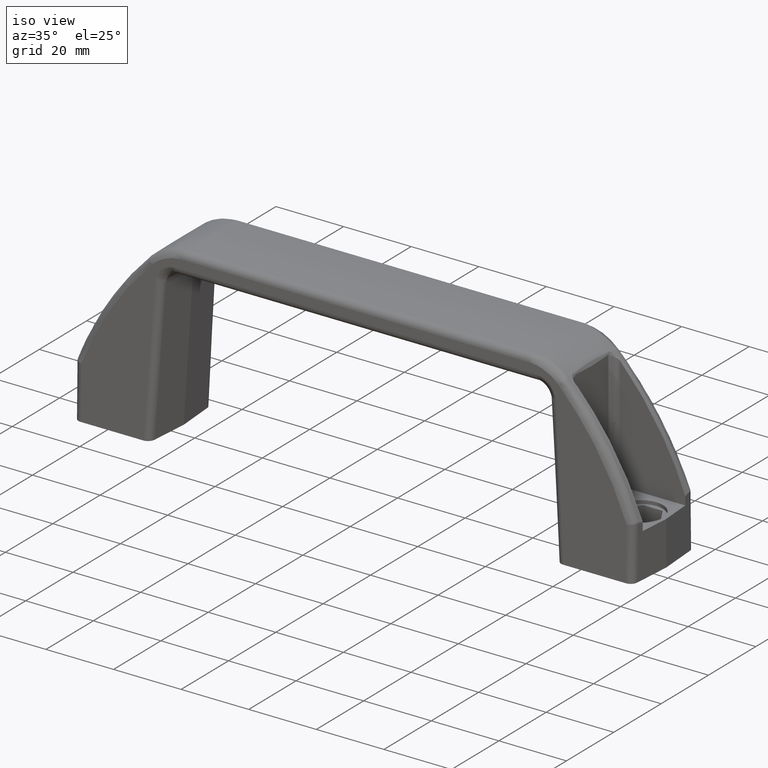
[diagram: clean part render]
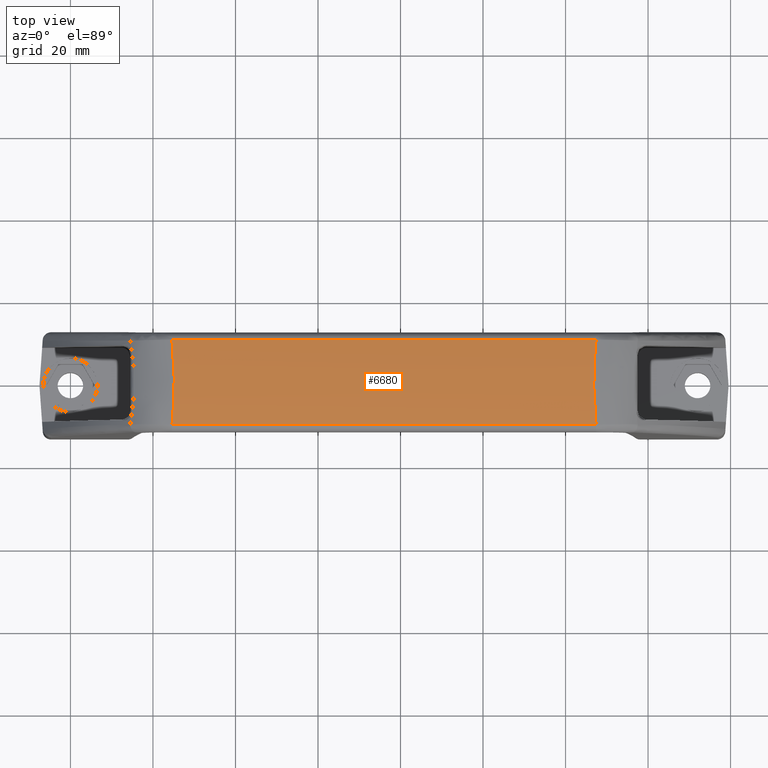
[diagram: tour spotlight — one face highlighted and labeled with its STEP entity id]
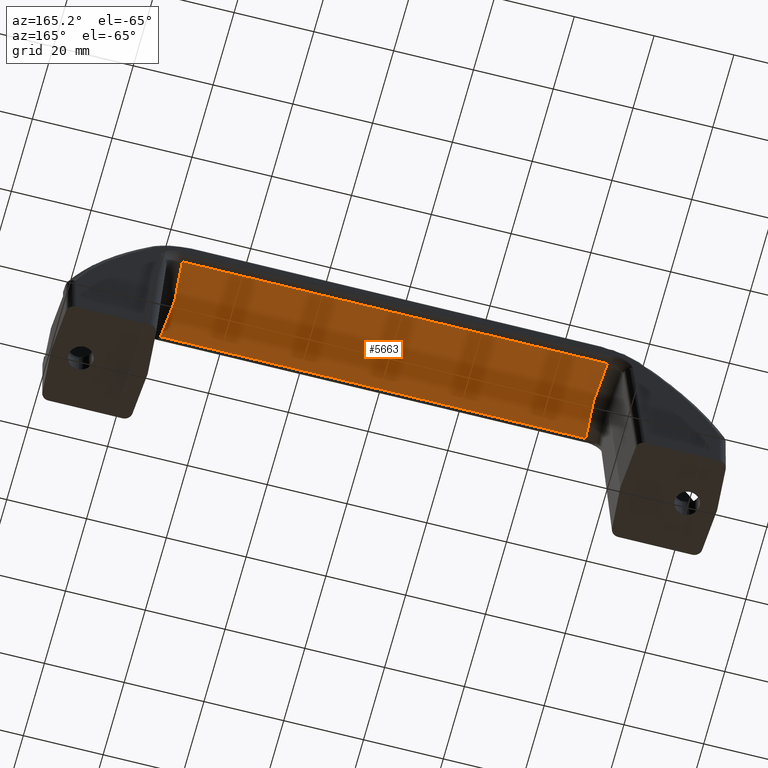
[diagram: tour spotlight — one face highlighted and labeled with its STEP entity id]
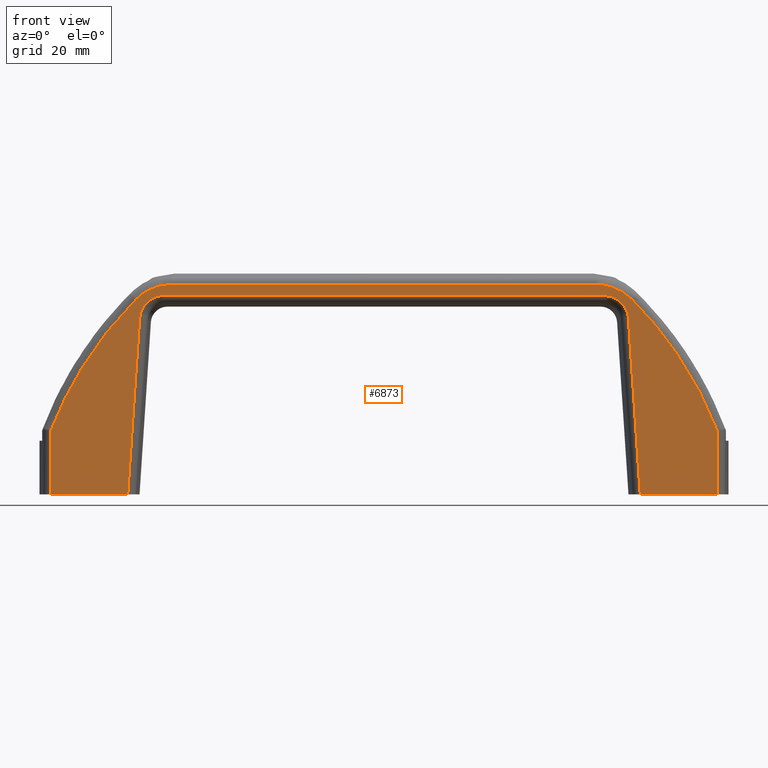
[diagram: tour spotlight — one face highlighted and labeled with its STEP entity id]
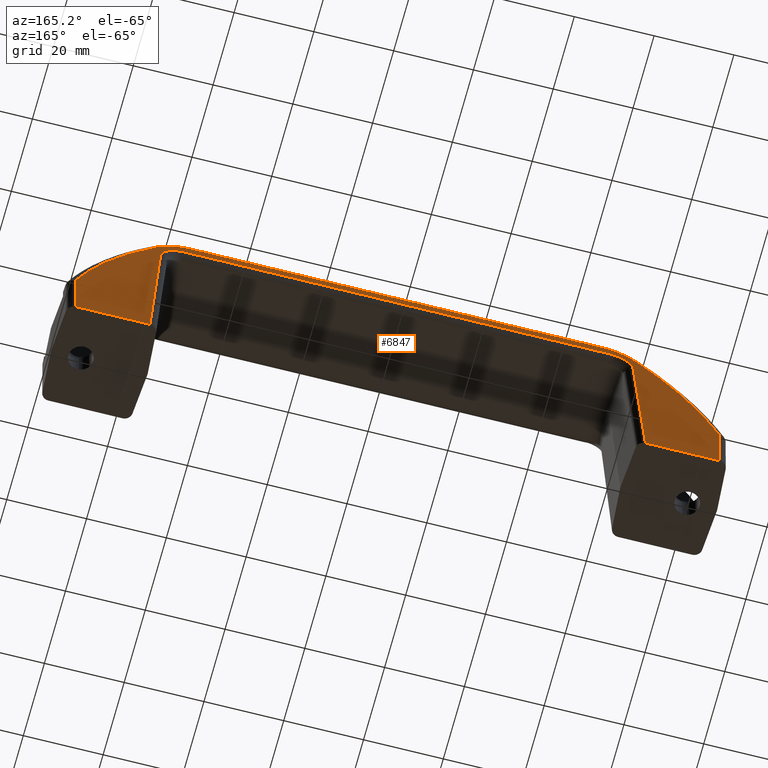
[diagram: tour spotlight — one face highlighted and labeled with its STEP entity id]
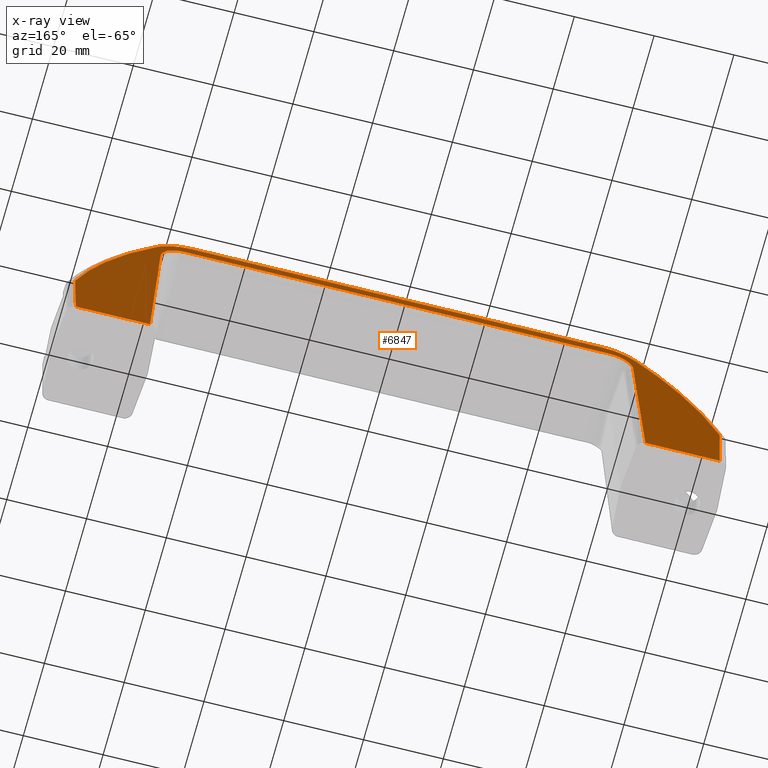
[diagram: x-ray of the same camera — body ghosted, this tour face saturated]
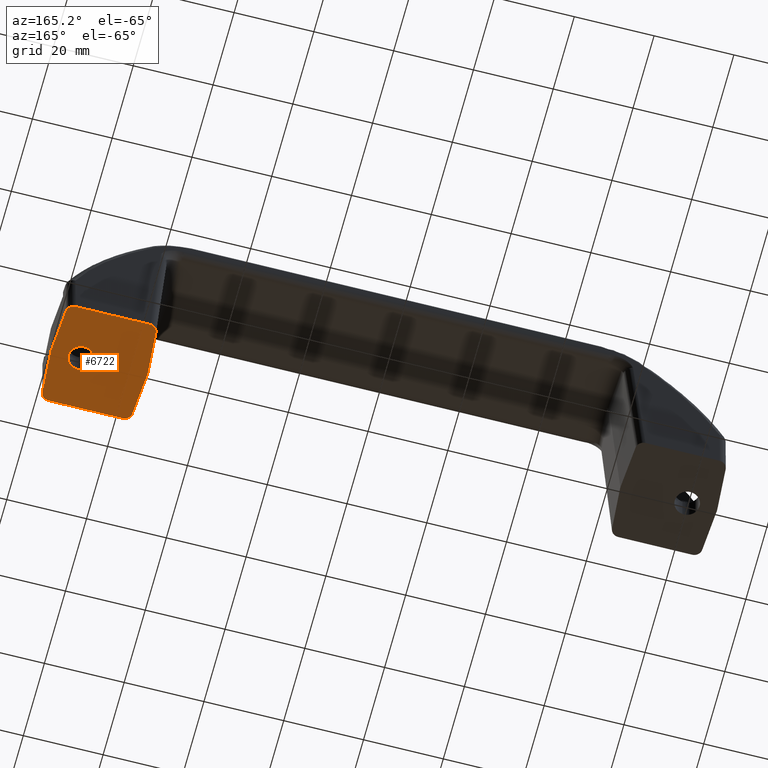
[diagram: tour spotlight — one face highlighted and labeled with its STEP entity id]
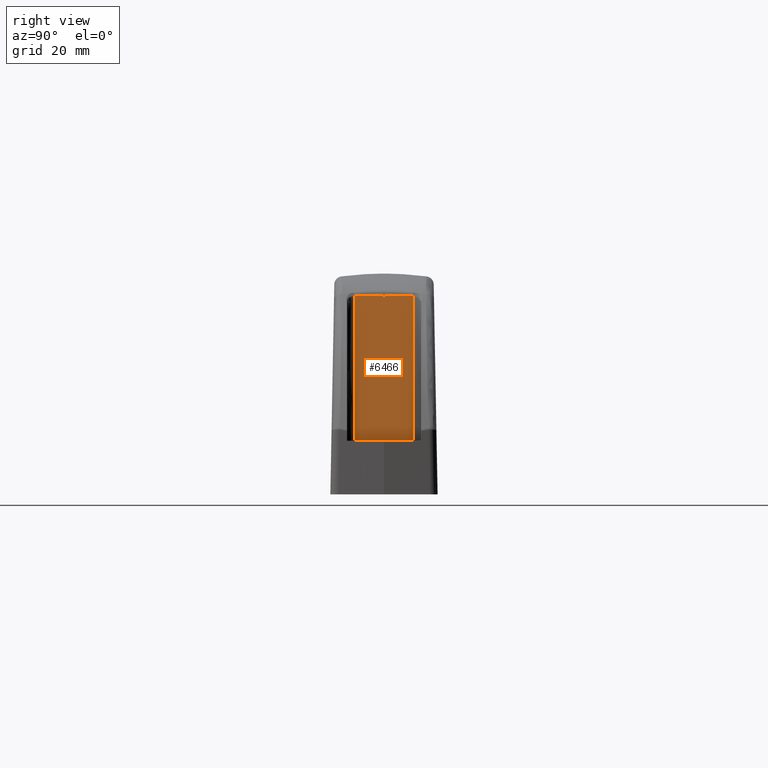
[diagram: tour spotlight — one face highlighted and labeled with its STEP entity id]
A machine part: a face-by-face anatomy tour. The part has 100 B-rep faces; the first image is the clean iso view, then the 6 largest visible faces are spotlighted one at a time (largest first), each with its STEP entity span.

Face 1 — top view, entity #6680. In plain terms, the highlighted face is a freeform B-spline surface patch.
Definition (entity closure, byte-faithful):
#3753=CARTESIAN_POINT('',(24.605866087513299,-10.306855738270601,52.833278849714901));
#3754=VERTEX_POINT('',#3753);
#3843=CARTESIAN_POINT('',(127.394141502765390,-10.306855738280500,52.833278849713601));
#3844=VERTEX_POINT('',#3843);
#3858=CARTESIAN_POINT('',(24.605866087513299,-10.306855738270601,52.833278849714901));
#3859=CARTESIAN_POINT('',(127.394141502765390,-10.306855738280500,52.833278849713601));
#3860=QUASI_UNIFORM_CURVE('',1,(#3858,#3859),.UNSPECIFIED.,.F.,.U.);
#3861=EDGE_CURVE('',#3754,#3844,#3860,.T.);
#4914=CARTESIAN_POINT('',(127.394141502764200,10.306855738270500,52.833278849714901));
#4915=VERTEX_POINT('',#4914);
#5004=CARTESIAN_POINT('',(24.605866087512251,10.306855738280399,52.833278849713601));
#5005=VERTEX_POINT('',#5004);
#5019=CARTESIAN_POINT('',(127.394141502764200,10.306855738270500,52.833278849714901));
#5020=CARTESIAN_POINT('',(24.605866087512251,10.306855738280399,52.833278849713601));
#5021=QUASI_UNIFORM_CURVE('',1,(#5019,#5020),.UNSPECIFIED.,.F.,.U.);
#5022=EDGE_CURVE('',#4915,#5005,#5021,.T.);
#6521=CARTESIAN_POINT('',(24.605866087512290,10.306855738280410,52.833278849713643));
#6522=CARTESIAN_POINT('',(24.790051179822051,8.603134616974437,53.054623634545052));
#6523=CARTESIAN_POINT('',(24.930304318989268,6.892516880908293,53.221116667321688));
#6524=CARTESIAN_POINT('',(25.118379283812679,3.457155306050117,53.443800937080752));
#6525=CARTESIAN_POINT('',(25.166193606715922,1.732411080668363,53.499993320156221));
#6526=CARTESIAN_POINT('',(25.166205345784348,-0.865566748162838,53.500007149888063));
#6527=CARTESIAN_POINT('',(25.154266055935750,-1.729982160851282,53.485950283391247));
#6528=CARTESIAN_POINT('',(25.106851613932349,-3.454966086031834,53.430021209175003));
#6529=CARTESIAN_POINT('',(25.071376685687628,-4.315656545307562,53.388148954393330));
#6530=CARTESIAN_POINT('',(24.930316104178608,-6.892390165462120,53.221130679105727));
#6531=CARTESIAN_POINT('',(24.790055298955998,-8.603096514782354,53.054628584722067));
#6532=CARTESIAN_POINT('',(24.605866087513359,-10.306855738270601,52.833278849714929));
#6533=B_SPLINE_CURVE_WITH_KNOTS('',3,(#6521,#6522,#6523,#6524,#6525,#6526,#6527,#6528,#6529,#6530,#6531,#6532),.UNSPECIFIED.,.F.,.U.,(4,2,2,2,2,4),(0.0,0.250000000000000,0.500000000000000,0.625000000000000,0.750000000000000,1.0),.UNSPECIFIED.);
#6534=EDGE_CURVE('',#5005,#3754,#6533,.T.);
#6614=CARTESIAN_POINT('',(127.394141502765290,-10.306855738280509,52.833278849713629));
#6615=CARTESIAN_POINT('',(127.209956410455600,-8.603134616974543,53.054623634545031));
#6616=CARTESIAN_POINT('',(127.069703271288400,-6.892516880908396,53.221116667321667));
#6617=CARTESIAN_POINT('',(126.881628306464900,-3.457155306050219,53.443800937080738));
#6618=CARTESIAN_POINT('',(126.833813983561600,-1.732411080668464,53.499993320156221));
#6619=CARTESIAN_POINT('',(126.833802244493300,0.865566748162740,53.500007149888063));
#6620=CARTESIAN_POINT('',(126.845741534341800,1.729982160851180,53.485950283391269));
#6621=CARTESIAN_POINT('',(126.893155976345300,3.454966086031733,53.430021209175003));
#6622=CARTESIAN_POINT('',(126.928630904589990,4.315656545307456,53.388148954393337));
#6623=CARTESIAN_POINT('',(127.069691486099000,6.892390165462016,53.221130679105727));
#6624=CARTESIAN_POINT('',(127.209952291321600,8.603096514782255,53.054628584722103));
#6625=CARTESIAN_POINT('',(127.394141502764200,10.306855738270500,52.833278849714951));
#6626=B_SPLINE_CURVE_WITH_KNOTS('',3,(#6614,#6615,#6616,#6617,#6618,#6619,#6620,#6621,#6622,#6623,#6624,#6625),.UNSPECIFIED.,.F.,.U.,(4,2,2,2,2,4),(0.0,0.250000000000000,0.500000000000000,0.625000000000000,0.750000000000000,1.0),.UNSPECIFIED.);
#6627=EDGE_CURVE('',#3844,#4915,#6626,.T.);
#6660=CARTESIAN_POINT('',(22.036159202130921,-10.998767969864261,52.740314939021133));
#6661=CARTESIAN_POINT('',(130.028091060281300,-10.998767969864261,52.740314939021133));
#6662=CARTESIAN_POINT('',(22.036159202130918,0.167852632597571,54.290271765386521));
#6663=CARTESIAN_POINT('',(130.028091060281300,0.167852632597571,54.290271765386521));
#6664=CARTESIAN_POINT('',(22.036159202130921,11.327936373857932,52.693928214963336));
#6665=CARTESIAN_POINT('',(130.028091060281330,11.327936373857932,52.693928214963336));
#6673=(BOUNDED_SURFACE()B_SPLINE_SURFACE(1,2,((#6660,#6662,#6664),(#6661,#6663,#6665)),.UNSPECIFIED.,.F.,.F.,.U.)B_SPLINE_SURFACE_WITH_KNOTS((2,2),(3,3),(0.0,107.991931858150390),(0.0,22.436502447169239),.UNSPECIFIED.)GEOMETRIC_REPRESENTATION_ITEM()RATIONAL_B_SPLINE_SURFACE(((1.0,0.989030935556110,0.997607631893531),(1.0,0.989030935556110,0.997607631893531)))REPRESENTATION_ITEM('')SURFACE());
#6674=ORIENTED_EDGE('',*,*,#6627,.T.);
#6675=ORIENTED_EDGE('',*,*,#5022,.T.);
#6676=ORIENTED_EDGE('',*,*,#6534,.T.);
#6677=ORIENTED_EDGE('',*,*,#3861,.T.);
#6678=EDGE_LOOP('',(#6674,#6675,#6676,#6677));
#6679=FACE_OUTER_BOUND('',#6678,.T.);
#6680=ADVANCED_FACE('',(#6679),#6673,.T.);

Face 2 — auxiliary view, entity #5663. In plain terms, the highlighted face is a freeform B-spline surface patch.
Definition (entity closure, byte-faithful):
#3188=CARTESIAN_POINT('',(129.285055827225790,-10.358489223977760,46.173451461950407));
#3189=VERTEX_POINT('',#3188);
#3297=CARTESIAN_POINT('',(22.714951763051801,-10.358489223977760,46.173451461950407));
#3298=VERTEX_POINT('',#3297);
#3312=CARTESIAN_POINT('',(129.285055827225790,-10.358489223977760,46.173451461950407));
#3313=CARTESIAN_POINT('',(22.714951763051801,-10.358489223977760,46.173451461950407));
#3314=QUASI_UNIFORM_CURVE('',1,(#3312,#3313),.UNSPECIFIED.,.F.,.U.);
#3315=EDGE_CURVE('',#3189,#3298,#3314,.T.);
#4289=CARTESIAN_POINT('',(22.714951968454049,10.358489223977660,46.173451461950407));
#4290=VERTEX_POINT('',#4289);
#4398=CARTESIAN_POINT('',(129.285055621823400,10.358489223977699,46.173451461950407));
#4399=VERTEX_POINT('',#4398);
#4413=CARTESIAN_POINT('',(22.714951968454049,10.358489223977660,46.173451461950407));
#4414=CARTESIAN_POINT('',(129.285055621823400,10.358489223977699,46.173451461950407));
#4415=QUASI_UNIFORM_CURVE('',1,(#4413,#4414),.UNSPECIFIED.,.F.,.U.);
#4416=EDGE_CURVE('',#4290,#4399,#4415,.T.);
#5347=CARTESIAN_POINT('',(128.493215177013010,-0.000000251959841,45.500002541110902));
#5348=VERTEX_POINT('',#5347);
#5349=CARTESIAN_POINT('',(129.285055621823600,10.358489223977751,46.173451461950428));
#5350=CARTESIAN_POINT('',(128.914219122887000,5.201136358955222,45.500002524730050));
#5351=CARTESIAN_POINT('',(128.493215177013010,-0.000000251959689,45.500002541111002));
#5359=(BOUNDED_CURVE()B_SPLINE_CURVE(2,(#5349,#5350,#5351),.UNSPECIFIED.,.F.,.U.)CURVE()GEOMETRIC_REPRESENTATION_ITEM()QUASI_UNIFORM_CURVE()RATIONAL_B_SPLINE_CURVE((1.0,0.997893252928760,1.0))REPRESENTATION_ITEM(''));
#5360=EDGE_CURVE('',#4399,#5348,#5359,.T.);
#5463=CARTESIAN_POINT('',(128.493215177013100,-0.000000251959689,45.500002541111002));
#5464=CARTESIAN_POINT('',(128.914219223794730,-5.201136609849888,45.500002557491960));
#5465=CARTESIAN_POINT('',(129.285055827225790,-10.358489223977720,46.173451461950428));
#5473=(BOUNDED_CURVE()B_SPLINE_CURVE(2,(#5463,#5464,#5465),.UNSPECIFIED.,.F.,.U.)CURVE()GEOMETRIC_REPRESENTATION_ITEM()QUASI_UNIFORM_CURVE()RATIONAL_B_SPLINE_CURVE((1.0,0.997893253133176,1.0))REPRESENTATION_ITEM(''));
#5474=EDGE_CURVE('',#5348,#3189,#5473,.T.);
#5524=CARTESIAN_POINT('',(23.506792413264549,-0.000000251959841,45.500002541110902));
#5525=VERTEX_POINT('',#5524);
#5526=CARTESIAN_POINT('',(23.506792413264549,-0.000000251959841,45.500002541110902));
#5527=CARTESIAN_POINT('',(23.085788467390660,5.201136358954993,45.500002524730043));
#5528=CARTESIAN_POINT('',(22.714951968454081,10.358489223977591,46.173451461950428));
#5536=(BOUNDED_CURVE()B_SPLINE_CURVE(2,(#5526,#5527,#5528),.UNSPECIFIED.,.F.,.U.)CURVE()GEOMETRIC_REPRESENTATION_ITEM()QUASI_UNIFORM_CURVE()RATIONAL_B_SPLINE_CURVE((1.0,0.997893252928859,1.0))REPRESENTATION_ITEM(''));
#5537=EDGE_CURVE('',#5525,#4290,#5536,.T.);
#5610=CARTESIAN_POINT('',(22.714951763051801,-10.358489223977781,46.173451461950428));
#5611=CARTESIAN_POINT('',(23.085788366482884,-5.201136609850027,45.500002557491953));
#5612=CARTESIAN_POINT('',(23.506792413264549,-0.000000251959841,45.500002541110902));
#5620=(BOUNDED_CURVE()B_SPLINE_CURVE(2,(#5610,#5611,#5612),.UNSPECIFIED.,.F.,.U.)CURVE()GEOMETRIC_REPRESENTATION_ITEM()QUASI_UNIFORM_CURVE()RATIONAL_B_SPLINE_CURVE((1.0,0.997893253133018,1.0))REPRESENTATION_ITEM(''));
#5621=EDGE_CURVE('',#3298,#5525,#5620,.T.);
#5641=CARTESIAN_POINT('',(131.949308428830110,-11.382641510416672,46.313921198296832));
#5642=CARTESIAN_POINT('',(19.984092846407339,-11.382641510416672,46.313921198296832));
#5643=CARTESIAN_POINT('',(131.949308428830140,0.000622531028097,44.677628488929585));
#5644=CARTESIAN_POINT('',(19.984092846407339,0.000622531028097,44.677628488929585));
#5645=CARTESIAN_POINT('',(131.949308428830110,11.383861364168128,46.314096556345127));
#5646=CARTESIAN_POINT('',(19.984092846407339,11.383861364168128,46.314096556345127));
#5654=(BOUNDED_SURFACE()B_SPLINE_SURFACE(1,2,((#5641,#5643,#5645),(#5642,#5644,#5646)),.UNSPECIFIED.,.F.,.F.,.U.)B_SPLINE_SURFACE_WITH_KNOTS((2,2),(3,3),(0.0,111.965215582422800),(0.0,22.882918399084229),.UNSPECIFIED.)GEOMETRIC_REPRESENTATION_ITEM()RATIONAL_B_SPLINE_SURFACE(((0.998119763819659,0.987348025308476,0.996875908568727),(0.998119763819659,0.987348025308476,0.996875908568727)))REPRESENTATION_ITEM('')SURFACE());
#5655=ORIENTED_EDGE('',*,*,#5537,.T.);
#5656=ORIENTED_EDGE('',*,*,#4416,.T.);
#5657=ORIENTED_EDGE('',*,*,#5360,.T.);
#5658=ORIENTED_EDGE('',*,*,#5474,.T.);
#5659=ORIENTED_EDGE('',*,*,#3315,.T.);
#5660=ORIENTED_EDGE('',*,*,#5621,.T.);
#5661=EDGE_LOOP('',(#5655,#5656,#5657,#5658,#5659,#5660));
#5662=FACE_OUTER_BOUND('',#5661,.T.);
#5663=ADVANCED_FACE('',(#5662),#5654,.T.);

Face 3 — front view, entity #6873. In plain terms, the highlighted face is a freeform B-spline surface patch.
Definition (entity closure, byte-faithful):
#2173=CARTESIAN_POINT('',(156.729857536941490,-12.710360635578621,15.495705996542799));
#2174=VERTEX_POINT('',#2173);
#2738=CARTESIAN_POINT('',(-4.729849946663751,-12.710360635578621,15.495705996543100));
#2739=VERTEX_POINT('',#2738);
#3071=CARTESIAN_POINT('',(135.239861819346200,-12.203539586289100,42.610632133530650));
#3072=VERTEX_POINT('',#3071);
#3095=CARTESIAN_POINT('',(138.110753281105590,-13.0,9.237056E-014));
#3096=VERTEX_POINT('',#3095);
#3110=CARTESIAN_POINT('',(135.239861819346200,-12.203539586289100,42.610632133530650));
#3111=CARTESIAN_POINT('',(138.110753281105590,-13.0,9.237056E-014));
#3112=QUASI_UNIFORM_CURVE('',1,(#3110,#3111),.UNSPECIFIED.,.F.,.U.);
#3113=EDGE_CURVE('',#3072,#3096,#3112,.T.);
#3186=CARTESIAN_POINT('',(129.285055827225790,-12.099177721707861,48.193991888626812));
#3187=VERTEX_POINT('',#3186);
#3241=CARTESIAN_POINT('',(129.285055827225790,-12.099177721707861,48.193991888626812));
#3242=CARTESIAN_POINT('',(129.662877802096490,-12.099177721707861,48.193991888626819));
#3243=CARTESIAN_POINT('',(130.034682762602500,-12.099839554653149,48.158583826053210));
#3244=CARTESIAN_POINT('',(130.583701891115200,-12.101787962631199,48.054343999227413));
#3245=CARTESIAN_POINT('',(130.765250492554200,-12.102597777817460,48.011018886762471));
#3246=CARTESIAN_POINT('',(131.035342016402410,-12.104057937883480,47.932900323230562));
#3247=CARTESIAN_POINT('',(131.125000024364910,-12.104585630512240,47.904668767591737));
#3248=CARTESIAN_POINT('',(131.303555852838400,-12.105724631508330,47.843732214300971));
#3249=CARTESIAN_POINT('',(131.392152572513000,-12.106334220415629,47.811119207760811));
#3250=CARTESIAN_POINT('',(131.828794000557200,-12.109559446677929,47.638569602727692));
#3251=CARTESIAN_POINT('',(132.160881307071490,-12.112720533553270,47.469451454896863));
#3252=CARTESIAN_POINT('',(132.633669738437590,-12.118316788481581,47.170051816231940));
#3253=CARTESIAN_POINT('',(132.787014824962310,-12.120325564948530,47.062582275250342));
#3254=CARTESIAN_POINT('',(133.010463186442710,-12.123560264702981,46.889525838387357));
#3255=CARTESIAN_POINT('',(133.083845549679410,-12.124675815491180,46.829843871218323));
#3256=CARTESIAN_POINT('',(133.226844468867990,-12.126957009445020,46.707799994687903));
#3257=CARTESIAN_POINT('',(133.296665590187900,-12.128125517277340,46.645284825659132));
#3258=CARTESIAN_POINT('',(133.637517673322010,-12.134105312976210,46.325365755769567));
#3259=CARTESIAN_POINT('',(133.884001485468300,-12.139324821256510,46.046122062773762));
#3260=CARTESIAN_POINT('',(134.159375379443590,-12.146393522748140,45.667946532971172));
#3261=CARTESIAN_POINT('',(134.212800278210810,-12.147834700639701,45.590843515772733));
#3262=CARTESIAN_POINT('',(134.316295911177890,-12.150772836359220,45.433653254778150));
#3263=CARTESIAN_POINT('',(134.366451376358700,-12.152272806896260,45.353404831046653));
#3264=CARTESIAN_POINT('',(134.510353083238500,-12.156811645454249,45.110576968194572));
#3265=CARTESIAN_POINT('',(134.598012497794090,-12.159901335519660,44.945278549694862));
#3266=CARTESIAN_POINT('',(134.836884358328400,-12.169356257208760,44.439440239327993));
#3267=CARTESIAN_POINT('',(134.964196712292110,-12.175905749895421,44.089042380591948));
#3268=CARTESIAN_POINT('',(135.082612883739610,-12.184406585150160,43.634247694463248));
#3269=CARTESIAN_POINT('',(135.104278124432310,-12.186125947075910,43.542261831435923));
#3270=CARTESIAN_POINT('',(135.143192648314990,-12.189576353940931,43.357665064156990));
#3271=CARTESIAN_POINT('',(135.160455675556390,-12.191307568655329,43.265045076936893));
#3272=CARTESIAN_POINT('',(135.205704921720010,-12.196519129202350,42.986226587670942));
#3273=CARTESIAN_POINT('',(135.227165705132390,-12.200017351988750,42.799071668599467));
#3274=CARTESIAN_POINT('',(135.239861819346200,-12.203539586289100,42.610632133530650));
#3275=B_SPLINE_CURVE_WITH_KNOTS('',3,(#3241,#3242,#3243,#3244,#3245,#3246,#3247,#3248,#3249,#3250,#3251,#3252,#3253,#3254,#3255,#3256,#3257,#3258,#3259,#3260,#3261,#3262,#3263,#3264,#3265,#3266,#3267,#3268,#3269,#3270,#3271,#3272,#3273,#3274),.UNSPECIFIED.,.F.,.U.,(4,2,2,2,2,2,2,2,2,2,2,2,2,2,2,2,4),(0.0,0.124999999999997,0.187499999999995,0.218749999999993,0.249999999999992,0.374999999999993,0.437499999999998,0.468750000000000,0.500000000000002,0.625000000000007,0.656250000000007,0.687500000000007,0.750000000000010,0.875000000000010,0.906250000000007,0.937500000000005,1.0),.UNSPECIFIED.);
#3276=EDGE_CURVE('',#3187,#3072,#3275,.T.);
#3295=CARTESIAN_POINT('',(22.714951763051801,-12.099177721707861,48.193991888626812));
#3296=VERTEX_POINT('',#3295);
#3318=CARTESIAN_POINT('',(22.714951763051801,-12.099177721707861,48.193991888626812));
#3319=CARTESIAN_POINT('',(129.285055827225790,-12.099177721707861,48.193991888626812));
#3320=QUASI_UNIFORM_CURVE('',1,(#3318,#3319),.UNSPECIFIED.,.F.,.U.);
#3321=EDGE_CURVE('',#3296,#3187,#3320,.T.);
#3394=CARTESIAN_POINT('',(16.760145770931299,-12.203539586289100,42.610632133530650));
#3395=VERTEX_POINT('',#3394);
#3447=CARTESIAN_POINT('',(16.760145770931249,-12.203539586289100,42.610632133530650));
#3448=CARTESIAN_POINT('',(16.785539442167909,-12.196494717415380,42.987532618274912));
#3449=CARTESIAN_POINT('',(16.845546965409401,-12.189604978391440,43.356133656054709));
#3450=CARTESIAN_POINT('',(16.985548074549790,-12.179494410621979,43.897049031720897));
#3451=CARTESIAN_POINT('',(17.040602526696158,-12.176161811476760,44.075343085990447));
#3452=CARTESIAN_POINT('',(17.136022568752040,-12.171220450806210,44.339705881864653));
#3453=CARTESIAN_POINT('',(17.169972442624580,-12.169582935790370,44.427312935211617));
#3454=CARTESIAN_POINT('',(17.242245860247991,-12.166327507354950,44.601478356506739));
#3455=CARTESIAN_POINT('',(17.280507941426411,-12.164712973069090,44.687855940800617));
#3456=CARTESIAN_POINT('',(17.480741637880499,-12.156772810293869,45.112654649274873));
#3457=CARTESIAN_POINT('',(17.670606667233979,-12.150778833532300,45.433332406019112));
#3458=CARTESIAN_POINT('',(17.999114780800451,-12.142315365309420,45.886127955942577));
#3459=CARTESIAN_POINT('',(18.115949568873969,-12.139582692444749,46.032325954202449));
#3460=CARTESIAN_POINT('',(18.302538166056070,-12.135620490425531,46.244303762231077));
#3461=CARTESIAN_POINT('',(18.366740713656760,-12.134320692823421,46.313842933943789));
#3462=CARTESIAN_POINT('',(18.497614387823340,-12.131794079108710,46.449016767680888));
#3463=CARTESIAN_POINT('',(18.564427447957620,-12.130564038730309,46.514823927925121));
#3464=CARTESIAN_POINT('',(18.905261194307919,-12.124577445750131,46.835106652364829));
#3465=CARTESIAN_POINT('',(19.199412161400179,-12.120307488373401,47.063549372019729));
#3466=CARTESIAN_POINT('',(19.593953048898580,-12.115619120618931,47.314377046883948));
#3467=CARTESIAN_POINT('',(19.674214774141351,-12.114714165432600,47.362792149352117));
#3468=CARTESIAN_POINT('',(19.837490210115082,-12.112970776883790,47.456063436713841));
#3469=CARTESIAN_POINT('',(19.920733042703631,-12.112130256772771,47.501031262653072));
#3470=CARTESIAN_POINT('',(20.172520448067949,-12.109730881806710,47.629397823337733));
#3471=CARTESIAN_POINT('',(20.343220290903691,-12.108291565697000,47.706401235206783));
#3472=CARTESIAN_POINT('',(20.863590001713209,-12.104440062945519,47.912456632411079));
#3473=CARTESIAN_POINT('',(21.221459415886361,-12.102490337942850,48.016766920054280));
#3474=CARTESIAN_POINT('',(21.682743845514690,-12.100839842125660,48.105068446274082));
#3475=CARTESIAN_POINT('',(21.775859310649000,-12.100549002975599,48.120628340802128));
#3476=CARTESIAN_POINT('',(21.962766377886890,-12.100050279180859,48.147310063820278));
#3477=CARTESIAN_POINT('',(22.056389504449559,-12.099842685047690,48.158416349945043));
#3478=CARTESIAN_POINT('',(22.337764106051129,-12.099344329934400,48.185078348506430));
#3479=CARTESIAN_POINT('',(22.526019688297019,-12.099177721707861,48.193991888626833));
#3480=CARTESIAN_POINT('',(22.714951763051801,-12.099177721707861,48.193991888626812));
#3481=B_SPLINE_CURVE_WITH_KNOTS('',3,(#3447,#3448,#3449,#3450,#3451,#3452,#3453,#3454,#3455,#3456,#3457,#3458,#3459,#3460,#3461,#3462,#3463,#3464,#3465,#3466,#3467,#3468,#3469,#3470,#3471,#3472,#3473,#3474,#3475,#3476,#3477,#3478,#3479,#3480),.UNSPECIFIED.,.F.,.U.,(4,2,2,2,2,2,2,2,2,2,2,2,2,2,2,2,4),(0.0,0.124999999999993,0.187499999999990,0.218749999999990,0.249999999999990,0.374999999999990,0.437499999999991,0.468749999999991,0.499999999999991,0.624999999999992,0.656249999999992,0.687499999999992,0.749999999999993,0.874999999999995,0.906249999999997,0.937499999999998,1.0),.UNSPECIFIED.);
#3482=EDGE_CURVE('',#3395,#3296,#3481,.T.);
#3503=CARTESIAN_POINT('',(13.889254309171861,-13.0,9.237056E-014));
#3504=VERTEX_POINT('',#3503);
#3524=CARTESIAN_POINT('',(13.889254309171861,-13.0,9.237056E-014));
#3525=CARTESIAN_POINT('',(16.760145770931299,-12.203539586289100,42.610632133530650));
#3526=QUASI_UNIFORM_CURVE('',1,(#3524,#3525),.UNSPECIFIED.,.F.,.U.);
#3527=EDGE_CURVE('',#3504,#3395,#3526,.T.);
#3546=CARTESIAN_POINT('',(-4.709161420633710,-13.0,9.237056E-014));
#3547=VERTEX_POINT('',#3546);
#3548=CARTESIAN_POINT('',(-4.729849946663751,-12.710360635578621,15.495705996543100));
#3549=CARTESIAN_POINT('',(-4.709161420633710,-13.0,9.237056E-014));
#3550=QUASI_UNIFORM_CURVE('',1,(#3548,#3549),.UNSPECIFIED.,.F.,.U.);
#3551=EDGE_CURVE('',#2739,#3547,#3550,.T.);
#3642=CARTESIAN_POINT('',(15.890975913603100,-12.116933949871560,47.244033681868601));
#3643=VERTEX_POINT('',#3642);
#3644=CARTESIAN_POINT('',(15.890975913603111,-12.116933949871489,47.244033681868629));
#3645=CARTESIAN_POINT('',(2.204786842950460,-12.372664168934165,33.562466962016330));
#3646=CARTESIAN_POINT('',(-4.729849946663751,-12.710360635578621,15.495705996543100));
#3654=(BOUNDED_CURVE()B_SPLINE_CURVE(2,(#3644,#3645,#3646),.UNSPECIFIED.,.F.,.U.)CURVE()GEOMETRIC_REPRESENTATION_ITEM()QUASI_UNIFORM_CURVE()RATIONAL_B_SPLINE_CURVE((1.0,0.978127315125653,1.0))REPRESENTATION_ITEM(''));
#3655=EDGE_CURVE('',#3643,#2739,#3654,.T.);
#3751=CARTESIAN_POINT('',(24.605866087513348,-12.048835073082079,50.887323590105787));
#3752=VERTEX_POINT('',#3751);
#3798=CARTESIAN_POINT('',(24.605866087513348,-12.048835073082079,50.887323590105787));
#3799=CARTESIAN_POINT('',(24.401762398555011,-12.048835073082060,50.887323590106192));
#3800=CARTESIAN_POINT('',(24.197809207723751,-12.048932014964789,50.882137199380239));
#3801=CARTESIAN_POINT('',(23.790202798842941,-12.049319123235980,50.861426906871522));
#3802=CARTESIAN_POINT('',(23.587072198984391,-12.049609029527970,50.845916920249813));
#3803=CARTESIAN_POINT('',(22.981923913644899,-12.050758192885930,50.784436680599157));
#3804=CARTESIAN_POINT('',(22.583194606337820,-12.051897021276650,50.723509361695413));
#3805=CARTESIAN_POINT('',(21.794860494811989,-12.054897825998250,50.562966309089973));
#3806=CARTESIAN_POINT('',(21.405256426838790,-12.056759860679090,50.463347453665087));
#3807=CARTESIAN_POINT('',(20.635165505749690,-12.061206500363779,50.225452230533939));
#3808=CARTESIAN_POINT('',(20.254678068903669,-12.063791059105050,50.087178337876622));
#3809=CARTESIAN_POINT('',(19.784929743878479,-12.067486259443481,49.889485119770562));
#3810=CARTESIAN_POINT('',(19.691388732274810,-12.068247755767180,49.848745066452082));
#3811=CARTESIAN_POINT('',(19.505987146644490,-12.069808146744879,49.765264149145281));
#3812=CARTESIAN_POINT('',(19.230025859858191,-12.072207807347890,49.636882306884317));
#3813=CARTESIAN_POINT('',(18.960396481676099,-12.074782169501560,49.499153931663251));
#3814=CARTESIAN_POINT('',(18.429400718789761,-12.080158875269751,49.211500173064771));
#3815=CARTESIAN_POINT('',(18.086401521955700,-12.084046787288189,49.003496880078252));
#3816=CARTESIAN_POINT('',(17.421941608265548,-12.092416872247981,48.555697334729253));
#3817=CARTESIAN_POINT('',(17.100481572207300,-12.096899063973000,48.315900077440851));
#3818=CARTESIAN_POINT('',(16.479259385021969,-12.106462106434151,47.804277305769503));
#3819=CARTESIAN_POINT('',(16.179494904890731,-12.111542892911521,47.532455229230571));
#3820=CARTESIAN_POINT('',(15.890975913603100,-12.116933949871560,47.244033681868601));
#3821=B_SPLINE_CURVE_WITH_KNOTS('',3,(#3798,#3799,#3800,#3801,#3802,#3803,#3804,#3805,#3806,#3807,#3808,#3809,#3810,#3811,#3812,#3813,#3814,#3815,#3816,#3817,#3818,#3819,#3820),.UNSPECIFIED.,.F.,.U.,(4,2,2,2,2,2,2,1,2,2,2,4),(0.0,0.062500000000000,0.125000000000000,0.250000000000000,0.375000000000000,0.500000000000001,0.531250000000001,0.562500000000001,0.625000000000002,0.750000000000001,0.875000000000001,1.0),.UNSPECIFIED.);
#3822=EDGE_CURVE('',#3752,#3643,#3821,.T.);
#3841=CARTESIAN_POINT('',(127.394141502762200,-12.048835073082079,50.887323590105787));
#3842=VERTEX_POINT('',#3841);
#3864=CARTESIAN_POINT('',(127.394141502762200,-12.048835073082079,50.887323590105787));
#3865=CARTESIAN_POINT('',(24.605866087513348,-12.048835073082079,50.887323590105787));
#3866=QUASI_UNIFORM_CURVE('',1,(#3864,#3865),.UNSPECIFIED.,.F.,.U.);
#3867=EDGE_CURVE('',#3842,#3752,#3866,.T.);
#3960=CARTESIAN_POINT('',(136.109031676674390,-12.116933949871560,47.244033681868601));
#3961=VERTEX_POINT('',#3960);
#4005=CARTESIAN_POINT('',(136.109031676674390,-12.116933949871560,47.244033681868601));
#4006=CARTESIAN_POINT('',(135.964809547319590,-12.114239119590961,47.388207101880582));
#4007=CARTESIAN_POINT('',(135.817219433333210,-12.111611644919501,47.528776996803387));
#4008=CARTESIAN_POINT('',(135.515295852779900,-12.106491554452260,47.802701836800409));
#4009=CARTESIAN_POINT('',(135.360866638442390,-12.103997888062899,47.936112988631450));
#4010=CARTESIAN_POINT('',(134.890453400956010,-12.096765609344899,48.323039900044563));
#4011=CARTESIAN_POINT('',(134.242420147230690,-12.087751780642879,48.805279735602333));
#4012=CARTESIAN_POINT('',(133.553545175783600,-12.079972506591520,49.221470897350052));
#4013=CARTESIAN_POINT('',(132.844056244383610,-12.072816346883730,49.604325441716767));
#4014=CARTESIAN_POINT('',(132.479007227265700,-12.069549750791669,49.779088332641876));
#4015=CARTESIAN_POINT('',(132.009308981987490,-12.065871164241040,49.975892713100549));
#4016=CARTESIAN_POINT('',(131.914695932187610,-12.065155812900420,50.014164009824093));
#4017=CARTESIAN_POINT('',(131.725255399302310,-12.063774223503289,50.088079042570392));
#4018=CARTESIAN_POINT('',(131.440351140203400,-12.061772152862860,50.195189821833189));
#4019=CARTESIAN_POINT('',(131.153241705381110,-12.059978638933490,50.291142817054777));
#4020=CARTESIAN_POINT('',(130.576128397195500,-12.056665355509709,50.468403480227188));
#4021=CARTESIAN_POINT('',(130.187533782931010,-12.054820845329870,50.567084774848162));
#4022=CARTESIAN_POINT('',(129.402711904726090,-12.051853690486871,50.725827558949113));
#4023=CARTESIAN_POINT('',(129.006484855654010,-12.050731025502310,50.785890135623070));
#4024=CARTESIAN_POINT('',(128.206247729460300,-12.049221783235719,50.866634596885419));
#4025=CARTESIAN_POINT('',(127.802239057257690,-12.048835073082079,50.887323590105858));
#4026=CARTESIAN_POINT('',(127.394141502762200,-12.048835073082079,50.887323590105787));
#4027=B_SPLINE_CURVE_WITH_KNOTS('',3,(#4005,#4006,#4007,#4008,#4009,#4010,#4011,#4012,#4013,#4014,#4015,#4016,#4017,#4018,#4019,#4020,#4021,#4022,#4023,#4024,#4025,#4026),.UNSPECIFIED.,.F.,.U.,(4,2,2,1,2,2,2,1,2,2,2,4),(0.0,0.062499999999998,0.124999999999995,0.249999999999989,0.374999999999982,0.499999999999976,0.531249999999978,0.562499999999980,0.624999999999983,0.749999999999989,0.874999999999994,1.0),.UNSPECIFIED.);
#4028=EDGE_CURVE('',#3961,#3842,#4027,.T.);
#4097=CARTESIAN_POINT('',(156.729857536941490,-12.710360635578549,15.495705996542750));
#4098=CARTESIAN_POINT('',(149.795220747327220,-12.372664168934163,33.562466962016295));
#4099=CARTESIAN_POINT('',(136.109031676674390,-12.116933949871489,47.244033681868729));
#4107=(BOUNDED_CURVE()B_SPLINE_CURVE(2,(#4097,#4098,#4099),.UNSPECIFIED.,.F.,.U.)CURVE()GEOMETRIC_REPRESENTATION_ITEM()QUASI_UNIFORM_CURVE()RATIONAL_B_SPLINE_CURVE((1.0,0.978127315125654,1.0))REPRESENTATION_ITEM(''));
#4108=EDGE_CURVE('',#2174,#3961,#4107,.T.);
#4135=CARTESIAN_POINT('',(156.709169010911490,-13.0,9.237056E-014));
#4136=VERTEX_POINT('',#4135);
#4137=CARTESIAN_POINT('',(156.709169010911490,-13.0,9.237056E-014));
#4138=CARTESIAN_POINT('',(156.729857536941490,-12.710360635578621,15.495705996542799));
#4139=QUASI_UNIFORM_CURVE('',1,(#4137,#4138),.UNSPECIFIED.,.F.,.U.);
#4140=EDGE_CURVE('',#4136,#2174,#4139,.T.);
#6695=CARTESIAN_POINT('',(138.110753281105590,-13.0,9.237056E-014));
#6696=CARTESIAN_POINT('',(156.709169010911490,-13.0,9.237056E-014));
#6697=QUASI_UNIFORM_CURVE('',1,(#6695,#6696),.UNSPECIFIED.,.F.,.U.);
#6698=EDGE_CURVE('',#3096,#4136,#6697,.T.);
#6848=CARTESIAN_POINT('',(-12.794762022529600,-13.047510686256009,-2.541821714696188));
#6849=CARTESIAN_POINT('',(-12.794762022529600,-12.001324361313831,53.429146669706462));
#6850=CARTESIAN_POINT('',(164.794773943494190,-13.047510686256009,-2.541821714696188));
#6851=CARTESIAN_POINT('',(164.794773943494190,-12.001324361313831,53.429146669706462));
#6852=B_SPLINE_SURFACE_WITH_KNOTS('',1,1,((#6848,#6850),(#6849,#6851)),.UNSPECIFIED.,.F.,.F.,.U.,(2,2),(2,2),(0.0,55.980744972841300),(0.0,177.589535966023790),.UNSPECIFIED.);
#6853=ORIENTED_EDGE('',*,*,#3655,.T.);
#6854=ORIENTED_EDGE('',*,*,#3551,.T.);
#6855=CARTESIAN_POINT('',(-4.709161420633710,-13.0,9.237056E-014));
#6856=CARTESIAN_POINT('',(13.889254309171861,-13.0,9.237056E-014));
#6857=QUASI_UNIFORM_CURVE('',1,(#6855,#6856),.UNSPECIFIED.,.F.,.U.);
#6858=EDGE_CURVE('',#3547,#3504,#6857,.T.);
#6859=ORIENTED_EDGE('',*,*,#6858,.T.);
#6860=ORIENTED_EDGE('',*,*,#3527,.T.);
#6861=ORIENTED_EDGE('',*,*,#3482,.T.);
#6862=ORIENTED_EDGE('',*,*,#3321,.T.);
#6863=ORIENTED_EDGE('',*,*,#3276,.T.);
#6864=ORIENTED_EDGE('',*,*,#3113,.T.);
#6865=ORIENTED_EDGE('',*,*,#6698,.T.);
#6866=ORIENTED_EDGE('',*,*,#4140,.T.);
#6867=ORIENTED_EDGE('',*,*,#4108,.T.);
#6868=ORIENTED_EDGE('',*,*,#4028,.T.);
#6869=ORIENTED_EDGE('',*,*,#3867,.T.);
#6870=ORIENTED_EDGE('',*,*,#3822,.T.);
#6871=EDGE_LOOP('',(#6853,#6854,#6859,#6860,#6861,#6862,#6863,#6864,#6865,#6866,#6867,#6868,#6869,#6870));
#6872=FACE_OUTER_BOUND('',#6871,.T.);
#6873=ADVANCED_FACE('',(#6872),#6852,.F.);

Face 4 — auxiliary view, entity #6847. An x-ray twin of the same camera follows (body ghosted, this face saturated) — the face is partly hidden behind the body. In plain terms, the highlighted face is a freeform B-spline surface patch.
Definition (entity closure, byte-faithful):
#2487=CARTESIAN_POINT('',(156.729857536941490,12.710360635578599,15.495705996542251));
#2488=VERTEX_POINT('',#2487);
#2927=CARTESIAN_POINT('',(-4.729849946663780,12.710360635578580,15.495705996543000));
#2928=VERTEX_POINT('',#2927);
#4172=CARTESIAN_POINT('',(16.760145970372651,12.203539586609679,42.610632116374553));
#4173=VERTEX_POINT('',#4172);
#4196=CARTESIAN_POINT('',(13.889254532678301,13.0,9.237056E-014));
#4197=VERTEX_POINT('',#4196);
#4211=CARTESIAN_POINT('',(16.760145970372651,12.203539586609679,42.610632116374553));
#4212=CARTESIAN_POINT('',(13.889254532678301,13.0,9.237056E-014));
#4213=QUASI_UNIFORM_CURVE('',1,(#4211,#4212),.UNSPECIFIED.,.F.,.U.);
#4214=EDGE_CURVE('',#4173,#4197,#4213,.T.);
#4287=CARTESIAN_POINT('',(22.714951968454049,12.099177721707740,48.193991888626812));
#4288=VERTEX_POINT('',#4287);
#4342=CARTESIAN_POINT('',(22.714951968454049,12.099177721707740,48.193991888626812));
#4343=CARTESIAN_POINT('',(22.337129992841209,12.099177721707740,48.193991888626798));
#4344=CARTESIAN_POINT('',(21.965325031644280,12.099839554657761,48.158583825801067));
#4345=CARTESIAN_POINT('',(21.416305902154399,12.101787962648030,48.054343998321833));
#4346=CARTESIAN_POINT('',(21.234757300399650,12.102597777839231,48.011018885592343));
#4347=CARTESIAN_POINT('',(20.964665776091842,12.104057937913851,47.932900321600179));
#4348=CARTESIAN_POINT('',(20.875007767978399,12.104585630545680,47.904668765797339));
#4349=CARTESIAN_POINT('',(20.696451939207609,12.105724631548281,47.843732212158137));
#4350=CARTESIAN_POINT('',(20.607855219431300,12.106334220458709,47.811119205450133));
#4351=CARTESIAN_POINT('',(20.171213790825249,12.109559446737711,47.638569599524139));
#4352=CARTESIAN_POINT('',(19.839126483916679,12.112720533628281,47.469451450878147));
#4353=CARTESIAN_POINT('',(19.366338052019671,12.118316788581531,47.170051810879471));
#4354=CARTESIAN_POINT('',(19.212992965328208,12.120325565057140,47.062582269434337));
#4355=CARTESIAN_POINT('',(18.989544603612309,12.123560264825080,46.889525831849397));
#4356=CARTESIAN_POINT('',(18.916162240348719,12.124675815617140,46.829843864474583));
#4357=CARTESIAN_POINT('',(18.773163321104288,12.126957009578680,46.707799987532283));
#4358=CARTESIAN_POINT('',(18.703342199755578,12.128125517414871,46.645284818295814));
#4359=CARTESIAN_POINT('',(18.362490116475040,12.134105313133320,46.325365747358710));
#4360=CARTESIAN_POINT('',(18.116006304201779,12.139324821429820,46.046122053496347));
#4361=CARTESIAN_POINT('',(17.840632410074399,12.146393522942690,45.667946522557948));
#4362=CARTESIAN_POINT('',(17.787207511277149,12.147834700838541,45.590843505129669));
#4363=CARTESIAN_POINT('',(17.683711878251462,12.150772836566770,45.433653243669291));
#4364=CARTESIAN_POINT('',(17.633556413063250,12.152272807107620,45.353404819733818));
#4365=CARTESIAN_POINT('',(17.489654706203300,12.156811645675530,45.110576956350521));
#4366=CARTESIAN_POINT('',(17.401995291650469,12.159901335747710,44.945278537489337));
#4367=CARTESIAN_POINT('',(17.163123431112790,12.169356257457620,44.439440226009090));
#4368=CARTESIAN_POINT('',(17.035811077130091,12.175905750158860,44.089042366492812));
#4369=CARTESIAN_POINT('',(16.917394905706750,12.184406585433280,43.634247679311677));
#4370=CARTESIAN_POINT('',(16.895729665022191,12.186125947363021,43.542261816070273));
#4371=CARTESIAN_POINT('',(16.856815141177581,12.189576354234630,43.357665048439500));
#4372=CARTESIAN_POINT('',(16.839552113956959,12.191307568952331,43.265045061042429));
#4373=CARTESIAN_POINT('',(16.794302867864261,12.196519129509349,42.986226571242121));
#4374=CARTESIAN_POINT('',(16.772842084509769,12.200017352302480,42.799071651809932));
#4375=CARTESIAN_POINT('',(16.760145970372651,12.203539586609679,42.610632116374553));
#4376=B_SPLINE_CURVE_WITH_KNOTS('',3,(#4342,#4343,#4344,#4345,#4346,#4347,#4348,#4349,#4350,#4351,#4352,#4353,#4354,#4355,#4356,#4357,#4358,#4359,#4360,#4361,#4362,#4363,#4364,#4365,#4366,#4367,#4368,#4369,#4370,#4371,#4372,#4373,#4374,#4375),.UNSPECIFIED.,.F.,.U.,(4,2,2,2,2,2,2,2,2,2,2,2,2,2,2,2,4),(0.0,0.125000000000002,0.187500000000003,0.218750000000004,0.250000000000006,0.375000000000007,0.437500000000009,0.468750000000009,0.500000000000009,0.625000000000008,0.656250000000007,0.687500000000006,0.750000000000006,0.875000000000007,0.906250000000006,0.937500000000005,1.0),.UNSPECIFIED.);
#4377=EDGE_CURVE('',#4288,#4173,#4376,.T.);
#4396=CARTESIAN_POINT('',(129.285055621823400,12.099177721707740,48.193991888626812));
#4397=VERTEX_POINT('',#4396);
#4419=CARTESIAN_POINT('',(129.285055621823400,12.099177721707740,48.193991888626812));
#4420=CARTESIAN_POINT('',(22.714951968454049,12.099177721707740,48.193991888626812));
#4421=QUASI_UNIFORM_CURVE('',1,(#4419,#4420),.UNSPECIFIED.,.F.,.U.);
#4422=EDGE_CURVE('',#4397,#4288,#4421,.T.);
#4555=CARTESIAN_POINT('',(135.239861619905010,12.203539586609679,42.610632116374553));
#4556=VERTEX_POINT('',#4555);
#4608=CARTESIAN_POINT('',(135.239861619905010,12.203539586609679,42.610632116374553));
#4609=CARTESIAN_POINT('',(135.214467948820410,12.196494717721910,42.987532601870100));
#4610=CARTESIAN_POINT('',(135.154460425651990,12.189604978684001,43.356133640398070));
#4611=CARTESIAN_POINT('',(135.014459316566590,12.179494410893369,43.897049017196338));
#4612=CARTESIAN_POINT('',(134.959404864429100,12.176161811741069,44.075343071844841));
#4613=CARTESIAN_POINT('',(134.863984822378090,12.171220451059829,44.339705868291283));
#4614=CARTESIAN_POINT('',(134.830034948505810,12.169582936040420,44.427312921829653));
#4615=CARTESIAN_POINT('',(134.757761530880910,12.166327507597799,44.601478343509122));
#4616=CARTESIAN_POINT('',(134.719499449694610,12.164712973308070,44.687855928010123));
#4617=CARTESIAN_POINT('',(134.519265753198310,12.156772810513800,45.112654637503049));
#4618=CARTESIAN_POINT('',(134.329400723785600,12.150778833736901,45.433332395067779));
#4619=CARTESIAN_POINT('',(134.000892610105810,12.142315365490710,45.886127946238361));
#4620=CARTESIAN_POINT('',(133.884057821990100,12.139582692618220,46.032325944916593));
#4621=CARTESIAN_POINT('',(133.697469224738600,12.135620490587190,46.244303753577093));
#4622=CARTESIAN_POINT('',(133.633266677103990,12.134320692980920,46.313842925512397));
#4623=CARTESIAN_POINT('',(133.502393002852900,12.131794079257720,46.449016759703603));
#4624=CARTESIAN_POINT('',(133.435579942674200,12.130564038875100,46.514823920173619));
#4625=CARTESIAN_POINT('',(133.094746196089490,12.124577445873941,46.835106645735678));
#4626=CARTESIAN_POINT('',(132.800595228773090,12.120307488480821,47.063549366267807));
#4627=CARTESIAN_POINT('',(132.406054340931890,12.115619120706739,47.314377042181107));
#4628=CARTESIAN_POINT('',(132.325792615617300,12.114714165516540,47.362792144856648));
#4629=CARTESIAN_POINT('',(132.162517179492910,12.112970776960070,47.456063432627339));
#4630=CARTESIAN_POINT('',(132.079274346822100,12.112130256845241,47.501031258771050));
#4631=CARTESIAN_POINT('',(131.827486941104410,12.109730881867151,47.629397820098582));
#4632=CARTESIAN_POINT('',(131.656787098024490,12.108291565750010,47.706401232365529));
#4633=CARTESIAN_POINT('',(131.136417386455290,12.104440062978050,47.912456630665510));
#4634=CARTESIAN_POINT('',(130.778547971739700,12.102490337964110,48.016766918910790));
#4635=CARTESIAN_POINT('',(130.317263541372200,12.100839842136789,48.105068445672892));
#4636=CARTESIAN_POINT('',(130.224148076098690,12.100549002984931,48.120628340297387));
#4637=CARTESIAN_POINT('',(130.037241008488110,12.100050279186830,48.147310063495667));
#4638=CARTESIAN_POINT('',(129.943617881738790,12.099842685052240,48.158416349696417));
#4639=CARTESIAN_POINT('',(129.662243279576300,12.099344329935500,48.185078348441877));
#4640=CARTESIAN_POINT('',(129.473987696955190,12.099177721707740,48.193991888626819));
#4641=CARTESIAN_POINT('',(129.285055621823400,12.099177721707740,48.193991888626812));
#4642=B_SPLINE_CURVE_WITH_KNOTS('',3,(#4608,#4609,#4610,#4611,#4612,#4613,#4614,#4615,#4616,#4617,#4618,#4619,#4620,#4621,#4622,#4623,#4624,#4625,#4626,#4627,#4628,#4629,#4630,#4631,#4632,#4633,#4634,#4635,#4636,#4637,#4638,#4639,#4640,#4641),.UNSPECIFIED.,.F.,.U.,(4,2,2,2,2,2,2,2,2,2,2,2,2,2,2,2,4),(0.0,0.125000000000007,0.187500000000009,0.218750000000012,0.250000000000015,0.375000000000027,0.437500000000033,0.468750000000039,0.500000000000044,0.625000000000040,0.656250000000039,0.687500000000038,0.750000000000037,0.875000000000028,0.906250000000021,0.937500000000014,1.0),.UNSPECIFIED.);
#4643=EDGE_CURVE('',#4556,#4397,#4642,.T.);
#4664=CARTESIAN_POINT('',(138.110753057599400,13.0,9.237056E-014));
#4665=VERTEX_POINT('',#4664);
#4685=CARTESIAN_POINT('',(138.110753057599400,13.0,9.237056E-014));
#4686=CARTESIAN_POINT('',(135.239861619905010,12.203539586609679,42.610632116374553));
#4687=QUASI_UNIFORM_CURVE('',1,(#4685,#4686),.UNSPECIFIED.,.F.,.U.);
#4688=EDGE_CURVE('',#4665,#4556,#4687,.T.);
#4707=CARTESIAN_POINT('',(156.709169010911490,13.0,9.237056E-014));
#4708=VERTEX_POINT('',#4707);
#4709=CARTESIAN_POINT('',(156.729857536941490,12.710360635578599,15.495705996542251));
#4710=CARTESIAN_POINT('',(156.709169010911490,13.0,9.237056E-014));
#4711=QUASI_UNIFORM_CURVE('',1,(#4709,#4710),.UNSPECIFIED.,.F.,.U.);
#4712=EDGE_CURVE('',#2488,#4708,#4711,.T.);
#4803=CARTESIAN_POINT('',(136.109031676676010,12.116933949871420,47.244033681869993));
#4804=VERTEX_POINT('',#4803);
#4805=CARTESIAN_POINT('',(136.109031676676010,12.116933949871420,47.244033681869993));
#4806=CARTESIAN_POINT('',(149.795220747327820,12.372664168934190,33.562466962015051));
#4807=CARTESIAN_POINT('',(156.729857536941610,12.710360635578610,15.495705996542281));
#4815=(BOUNDED_CURVE()B_SPLINE_CURVE(2,(#4805,#4806,#4807),.UNSPECIFIED.,.F.,.U.)CURVE()GEOMETRIC_REPRESENTATION_ITEM()QUASI_UNIFORM_CURVE()RATIONAL_B_SPLINE_CURVE((1.0,0.978127315125661,1.0))REPRESENTATION_ITEM(''));
#4816=EDGE_CURVE('',#4804,#2488,#4815,.T.);
#4912=CARTESIAN_POINT('',(127.394141502764200,12.048835073081960,50.887323590105787));
#4913=VERTEX_POINT('',#4912);
#4959=CARTESIAN_POINT('',(127.394141502764200,12.048835073081960,50.887323590105787));
#4960=CARTESIAN_POINT('',(127.598245191722600,12.048835073081939,50.887323590106213));
#4961=CARTESIAN_POINT('',(127.802198382553900,12.048932014964681,50.882137199380253));
#4962=CARTESIAN_POINT('',(128.209804791434610,12.049319123235870,50.861426906871522));
#4963=CARTESIAN_POINT('',(128.412935391293300,12.049609029527870,50.845916920249849));
#4964=CARTESIAN_POINT('',(129.018083676632700,12.050758192885819,50.784436680599171));
#4965=CARTESIAN_POINT('',(129.416812983939790,12.051897021276551,50.723509361695413));
#4966=CARTESIAN_POINT('',(130.205147095465690,12.054897825998140,50.562966309089937));
#4967=CARTESIAN_POINT('',(130.594751163438900,12.056759860678991,50.463347453665087));
#4968=CARTESIAN_POINT('',(131.364842084528110,12.061206500363680,50.225452230533882));
#4969=CARTESIAN_POINT('',(131.745329521374200,12.063791059104931,50.087178337876573));
#4970=CARTESIAN_POINT('',(132.215077846399400,12.067486259443370,49.889485119770498));
#4971=CARTESIAN_POINT('',(132.308618858003000,12.068247755767080,49.848745066451983));
#4972=CARTESIAN_POINT('',(132.494020443633300,12.069808146744780,49.765264149145203));
#4973=CARTESIAN_POINT('',(132.769981730419600,12.072207807347780,49.636882306884203));
#4974=CARTESIAN_POINT('',(133.039611108601800,12.074782169501461,49.499153931663123));
#4975=CARTESIAN_POINT('',(133.570606871488110,12.080158875269660,49.211500173064621));
#4976=CARTESIAN_POINT('',(133.913606068322200,12.084046787288090,49.003496880078082));
#4977=CARTESIAN_POINT('',(134.578065982012390,12.092416872247890,48.555697334729068));
#4978=CARTESIAN_POINT('',(134.899526018070590,12.096899063972909,48.315900077440602));
#4979=CARTESIAN_POINT('',(135.520748205255900,12.106462106434060,47.804277305769190));
#4980=CARTESIAN_POINT('',(135.820512685387400,12.111542892911420,47.532455229230123));
#4981=CARTESIAN_POINT('',(136.109031676676010,12.116933949871420,47.244033681869993));
#4982=B_SPLINE_CURVE_WITH_KNOTS('',3,(#4959,#4960,#4961,#4962,#4963,#4964,#4965,#4966,#4967,#4968,#4969,#4970,#4971,#4972,#4973,#4974,#4975,#4976,#4977,#4978,#4979,#4980,#4981),.UNSPECIFIED.,.F.,.U.,(4,2,2,2,2,2,2,1,2,2,2,4),(0.0,0.062499999999994,0.124999999999989,0.249999999999986,0.374999999999984,0.499999999999981,0.531249999999985,0.562499999999990,0.624999999999991,0.749999999999994,0.874999999999997,1.0),.UNSPECIFIED.);
#4983=EDGE_CURVE('',#4913,#4804,#4982,.T.);
#5002=CARTESIAN_POINT('',(24.605866087515452,12.048835073081960,50.887323590105900));
#5003=VERTEX_POINT('',#5002);
#5025=CARTESIAN_POINT('',(24.605866087515452,12.048835073081960,50.887323590105900));
#5026=CARTESIAN_POINT('',(127.394141502764200,12.048835073081960,50.887323590105787));
#5027=QUASI_UNIFORM_CURVE('',1,(#5025,#5026),.UNSPECIFIED.,.F.,.U.);
#5028=EDGE_CURVE('',#5003,#4913,#5027,.T.);
#5121=CARTESIAN_POINT('',(15.890975913603100,12.116933949871440,47.244033681868700));
#5122=VERTEX_POINT('',#5121);
#5166=CARTESIAN_POINT('',(15.890975913603100,12.116933949871440,47.244033681868700));
#5167=CARTESIAN_POINT('',(16.035198042957880,12.114239119590851,47.388207101880703));
#5168=CARTESIAN_POINT('',(16.182788156944500,12.111611644919400,47.528776996803430));
#5169=CARTESIAN_POINT('',(16.484711737497740,12.106491554452170,47.802701836800473));
#5170=CARTESIAN_POINT('',(16.639140951835230,12.103997888062800,47.936112988631443));
#5171=CARTESIAN_POINT('',(17.109554189321639,12.096765609344789,48.323039900044549));
#5172=CARTESIAN_POINT('',(17.757587443046940,12.087751780642771,48.805279735602390));
#5173=CARTESIAN_POINT('',(18.446462414493990,12.079972506591419,49.221470897350073));
#5174=CARTESIAN_POINT('',(19.155951345894060,12.072816346883631,49.604325441716767));
#5175=CARTESIAN_POINT('',(19.521000363011929,12.069549750791570,49.779088332641898));
#5176=CARTESIAN_POINT('',(19.990698608290032,12.065871164240940,49.975892713100571));
#5177=CARTESIAN_POINT('',(20.085311658090010,12.065155812900310,50.014164009824107));
#5178=CARTESIAN_POINT('',(20.274752190975381,12.063774223503190,50.088079042570442));
#5179=CARTESIAN_POINT('',(20.559656450074179,12.061772152862760,50.195189821833210));
#5180=CARTESIAN_POINT('',(20.846765884896492,12.059978638933380,50.291142817054833));
#5181=CARTESIAN_POINT('',(21.423879193082140,12.056665355509599,50.468403480227202));
#5182=CARTESIAN_POINT('',(21.812473807346692,12.054820845329770,50.567084774848198));
#5183=CARTESIAN_POINT('',(22.597295685551579,12.051853690486761,50.725827558949149));
#5184=CARTESIAN_POINT('',(22.993522734623660,12.050731025502200,50.785890135623113));
#5185=CARTESIAN_POINT('',(23.793759860817332,12.049221783235611,50.866634596885440));
#5186=CARTESIAN_POINT('',(24.197768533019911,12.048835073081960,50.887323590105957));
#5187=CARTESIAN_POINT('',(24.605866087515452,12.048835073081960,50.887323590105900));
#5188=B_SPLINE_CURVE_WITH_KNOTS('',3,(#5166,#5167,#5168,#5169,#5170,#5171,#5172,#5173,#5174,#5175,#5176,#5177,#5178,#5179,#5180,#5181,#5182,#5183,#5184,#5185,#5186,#5187),.UNSPECIFIED.,.F.,.U.,(4,2,2,1,2,2,2,1,2,2,2,4),(0.0,0.062500000000000,0.125000000000000,0.249999999999999,0.374999999999998,0.499999999999998,0.531249999999998,0.562499999999998,0.624999999999999,0.749999999999999,0.875000000000000,1.0),.UNSPECIFIED.);
#5189=EDGE_CURVE('',#5122,#5003,#5188,.T.);
#5258=CARTESIAN_POINT('',(-4.729849946663780,12.710360635578580,15.495705996543000));
#5259=CARTESIAN_POINT('',(2.204786842950487,12.372664168934172,33.562466962016401));
#5260=CARTESIAN_POINT('',(15.890975913603180,12.116933949871459,47.244033681868700));
#5268=(BOUNDED_CURVE()B_SPLINE_CURVE(2,(#5258,#5259,#5260),.UNSPECIFIED.,.F.,.U.)CURVE()GEOMETRIC_REPRESENTATION_ITEM()QUASI_UNIFORM_CURVE()RATIONAL_B_SPLINE_CURVE((1.0,0.978127315125651,1.0))REPRESENTATION_ITEM(''));
#5269=EDGE_CURVE('',#2928,#5122,#5268,.T.);
#5296=CARTESIAN_POINT('',(-4.709161420633710,13.0,9.237056E-014));
#5297=VERTEX_POINT('',#5296);
#5298=CARTESIAN_POINT('',(-4.709161420633710,13.0,9.237056E-014));
#5299=CARTESIAN_POINT('',(-4.729849946663780,12.710360635578580,15.495705996543000));
#5300=QUASI_UNIFORM_CURVE('',1,(#5298,#5299),.UNSPECIFIED.,.F.,.U.);
#5301=EDGE_CURVE('',#5297,#2928,#5300,.T.);
#6686=CARTESIAN_POINT('',(138.110753057599400,13.0,9.237056E-014));
#6687=CARTESIAN_POINT('',(156.709169010911490,13.0,9.237056E-014));
#6688=QUASI_UNIFORM_CURVE('',1,(#6686,#6687),.UNSPECIFIED.,.F.,.U.);
#6689=EDGE_CURVE('',#4665,#4708,#6688,.T.);
#6822=CARTESIAN_POINT('',(-12.794762022529630,12.001324351110510,53.429147215577323));
#6823=CARTESIAN_POINT('',(-12.794762022529630,13.047510713467350,-2.541823170503199));
#6824=CARTESIAN_POINT('',(164.794773943494190,12.001324351110510,53.429147215577323));
#6825=CARTESIAN_POINT('',(164.794773943494190,13.047510713467350,-2.541823170503199));
#6826=B_SPLINE_SURFACE_WITH_KNOTS('',1,1,((#6822,#6824),(#6823,#6825)),.UNSPECIFIED.,.F.,.F.,.U.,(2,2),(2,2),(0.0,55.980746974868822),(0.0,177.589535966023900),.UNSPECIFIED.);
#6827=ORIENTED_EDGE('',*,*,#4816,.T.);
#6828=ORIENTED_EDGE('',*,*,#4712,.T.);
#6829=ORIENTED_EDGE('',*,*,#6689,.F.);
#6830=ORIENTED_EDGE('',*,*,#4688,.T.);
#6831=ORIENTED_EDGE('',*,*,#4643,.T.);
#6832=ORIENTED_EDGE('',*,*,#4422,.T.);
#6833=ORIENTED_EDGE('',*,*,#4377,.T.);
#6834=ORIENTED_EDGE('',*,*,#4214,.T.);
#6835=CARTESIAN_POINT('',(-4.709161420633710,13.0,9.237056E-014));
#6836=CARTESIAN_POINT('',(13.889254532678301,13.0,9.237056E-014));
#6837=QUASI_UNIFORM_CURVE('',1,(#6835,#6836),.UNSPECIFIED.,.F.,.U.);
#6838=EDGE_CURVE('',#5297,#4197,#6837,.T.);
#6839=ORIENTED_EDGE('',*,*,#6838,.F.);
#6840=ORIENTED_EDGE('',*,*,#5301,.T.);
#6841=ORIENTED_EDGE('',*,*,#5269,.T.);
#6842=ORIENTED_EDGE('',*,*,#5189,.T.);
#6843=ORIENTED_EDGE('',*,*,#5028,.T.);
#6844=ORIENTED_EDGE('',*,*,#4983,.T.);
#6845=EDGE_LOOP('',(#6827,#6828,#6829,#6830,#6831,#6832,#6833,#6834,#6839,#6840,#6841,#6842,#6843,#6844));
#6846=FACE_OUTER_BOUND('',#6845,.T.);
#6847=ADVANCED_FACE('',(#6846),#6826,.F.);

Face 5 — auxiliary view, entity #6722. In plain terms, the highlighted face is a freeform B-spline surface patch.
Definition (entity closure, byte-faithful):
#438=CARTESIAN_POINT('',(151.634101444869600,-3.078329677869706,1.112065E-013));
#439=VERTEX_POINT('',#438);
#440=CARTESIAN_POINT('',(155.100007737520090,0.0,0.0));
#441=VERTEX_POINT('',#440);
#442=CARTESIAN_POINT('',(151.634101444869600,-3.078329677869706,1.112065E-013));
#443=CARTESIAN_POINT('',(151.816412810037660,-3.100000147242100,1.110223E-013));
#444=CARTESIAN_POINT('',(152.000007590277990,-3.100000147242100,1.110223E-013));
#445=CARTESIAN_POINT('',(155.100007737520170,-3.100000147242100,1.110223E-013));
#446=CARTESIAN_POINT('',(155.100007737520090,0.0,1.110223E-013));
#454=(BOUNDED_CURVE()B_SPLINE_CURVE(2,(#442,#443,#444,#445,#446),.UNSPECIFIED.,.F.,.U.)B_SPLINE_CURVE_WITH_KNOTS((3,2,3),(0.229562473450549,0.250000000000000,0.500000000000000),.UNSPECIFIED.)CURVE()GEOMETRIC_REPRESENTATION_ITEM()RATIONAL_B_SPLINE_CURVE((0.956026754060296,0.976055948257384,1.0,0.707106781186547,1.0))REPRESENTATION_ITEM(''));
#455=EDGE_CURVE('',#439,#441,#454,.T.);
#496=CARTESIAN_POINT('',(152.189258072401910,3.094218022039970,1.112166E-013));
#497=VERTEX_POINT('',#496);
#503=CARTESIAN_POINT('',(155.100007737520090,0.0,1.110223E-013));
#504=CARTESIAN_POINT('',(155.100007737520120,2.916188944829819,1.110223E-013));
#505=CARTESIAN_POINT('',(152.189258072401940,3.094218022039970,1.112166E-013));
#513=(BOUNDED_CURVE()B_SPLINE_CURVE(2,(#503,#504,#505),.UNSPECIFIED.,.F.,.U.)B_SPLINE_CURVE_WITH_KNOTS((3,3),(0.500000000000000,0.739332962177632),.UNSPECIFIED.)CURVE()GEOMETRIC_REPRESENTATION_ITEM()RATIONAL_B_SPLINE_CURVE((1.0,0.719603993358540,0.976072041535317))REPRESENTATION_ITEM(''));
#514=EDGE_CURVE('',#441,#497,#513,.T.);
#537=CARTESIAN_POINT('',(148.900007443035890,0.0,1.110223E-013));
#538=VERTEX_POINT('',#537);
#539=CARTESIAN_POINT('',(148.900007443035890,0.0,1.110223E-013));
#540=CARTESIAN_POINT('',(148.900007443035920,-2.753341160157949,1.110223E-013));
#541=CARTESIAN_POINT('',(151.634101444869600,-3.078329677869706,1.112065E-013));
#549=(BOUNDED_CURVE()B_SPLINE_CURVE(2,(#539,#540,#541),.UNSPECIFIED.,.F.,.U.)B_SPLINE_CURVE_WITH_KNOTS((3,3),(0.0,0.229562473450549),.UNSPECIFIED.)CURVE()GEOMETRIC_REPRESENTATION_ITEM()RATIONAL_B_SPLINE_CURVE((1.0,0.731050832929164,0.956026754060296))REPRESENTATION_ITEM(''));
#550=EDGE_CURVE('',#538,#439,#549,.T.);
#552=CARTESIAN_POINT('',(152.189258072401880,3.094218022039970,1.112166E-013));
#553=CARTESIAN_POINT('',(152.094721161580760,3.100000147242101,1.110223E-013));
#554=CARTESIAN_POINT('',(152.000007590277990,3.100000147242100,1.110223E-013));
#555=CARTESIAN_POINT('',(148.900007443035950,3.100000147242100,1.110223E-013));
#556=CARTESIAN_POINT('',(148.900007443035890,0.0,1.110223E-013));
#564=(BOUNDED_CURVE()B_SPLINE_CURVE(2,(#552,#553,#554,#555,#556),.UNSPECIFIED.,.F.,.U.)B_SPLINE_CURVE_WITH_KNOTS((3,2,3),(0.739332962177632,0.750000000000000,1.0),.UNSPECIFIED.)CURVE()GEOMETRIC_REPRESENTATION_ITEM()RATIONAL_B_SPLINE_CURVE((0.976072041535317,0.987502787828007,1.0,0.707106781186547,1.0))REPRESENTATION_ITEM(''));
#565=EDGE_CURVE('',#497,#538,#564,.T.);
#3088=CARTESIAN_POINT('',(136.109607222841190,-11.150591457394180,9.947598E-014));
#3089=VERTEX_POINT('',#3088);
#3095=CARTESIAN_POINT('',(138.110753281105590,-13.0,9.237056E-014));
#3096=VERTEX_POINT('',#3095);
#3097=CARTESIAN_POINT('',(138.110753281105590,-12.999999999999989,9.714451E-014));
#3098=CARTESIAN_POINT('',(136.252178353248890,-13.000000000000064,9.714451E-014));
#3099=CARTESIAN_POINT('',(136.109607222840990,-11.150591457394119,9.714451E-014));
#3107=(BOUNDED_CURVE()B_SPLINE_CURVE(2,(#3097,#3098,#3099),.UNSPECIFIED.,.F.,.U.)CURVE()GEOMETRIC_REPRESENTATION_ITEM()QUASI_UNIFORM_CURVE()RATIONAL_B_SPLINE_CURVE((1.0,0.733299809384522,1.0))REPRESENTATION_ITEM(''));
#3108=EDGE_CURVE('',#3096,#3089,#3107,.T.);
#4127=CARTESIAN_POINT('',(158.704136312641000,-11.142144754994700,0.0));
#4128=VERTEX_POINT('',#4127);
#4135=CARTESIAN_POINT('',(156.709169010911490,-13.0,9.237056E-014));
#4136=VERTEX_POINT('',#4135);
#4142=CARTESIAN_POINT('',(158.704136312641000,-11.142144754994700,0.0));
#4143=CARTESIAN_POINT('',(158.571432216751160,-13.000000000000144,9.952976E-014));
#4144=CARTESIAN_POINT('',(156.709169010911410,-12.999999999999989,9.952976E-014));
#4152=(BOUNDED_CURVE()B_SPLINE_CURVE(2,(#4142,#4143,#4144),.UNSPECIFIED.,.F.,.U.)CURVE()GEOMETRIC_REPRESENTATION_ITEM()QUASI_UNIFORM_CURVE()RATIONAL_B_SPLINE_CURVE((1.0,0.731858827678803,1.0))REPRESENTATION_ITEM(''));
#4153=EDGE_CURVE('',#4128,#4136,#4152,.T.);
#4662=CARTESIAN_POINT('',(136.109606995972600,11.150591412605980,9.947598E-014));
#4663=VERTEX_POINT('',#4662);
#4664=CARTESIAN_POINT('',(138.110753057599400,13.0,9.237056E-014));
#4665=VERTEX_POINT('',#4664);
#4666=CARTESIAN_POINT('',(136.109606995972600,11.150591412605991,9.714451E-014));
#4667=CARTESIAN_POINT('',(136.252178087957560,13.000000000000167,9.714451E-014));
#4668=CARTESIAN_POINT('',(138.110753057599400,12.999999999999989,9.714451E-014));
#4676=(BOUNDED_CURVE()B_SPLINE_CURVE(2,(#4666,#4667,#4668),.UNSPECIFIED.,.F.,.U.)CURVE()GEOMETRIC_REPRESENTATION_ITEM()QUASI_UNIFORM_CURVE()RATIONAL_B_SPLINE_CURVE((1.0,0.733299801751146,1.0))REPRESENTATION_ITEM(''));
#4677=EDGE_CURVE('',#4663,#4665,#4676,.T.);
#4707=CARTESIAN_POINT('',(156.709169010911490,13.0,9.237056E-014));
#4708=VERTEX_POINT('',#4707);
#4715=CARTESIAN_POINT('',(158.704136312641000,11.142144754994980,-2.842171E-011));
#4716=VERTEX_POINT('',#4715);
#4722=CARTESIAN_POINT('',(156.709169010911490,12.999999999999989,9.714451E-014));
#4723=CARTESIAN_POINT('',(158.571432366569550,13.000000000000041,9.714451E-014));
#4724=CARTESIAN_POINT('',(158.704136312641000,11.142144754994980,-2.842171E-011));
#4732=(BOUNDED_CURVE()B_SPLINE_CURVE(2,(#4722,#4723,#4724),.UNSPECIFIED.,.F.,.U.)CURVE()GEOMETRIC_REPRESENTATION_ITEM()QUASI_UNIFORM_CURVE()RATIONAL_B_SPLINE_CURVE((1.0,0.731858800337014,1.0))REPRESENTATION_ITEM(''));
#4733=EDGE_CURVE('',#4708,#4716,#4732,.T.);
#5932=CARTESIAN_POINT('',(159.500003795139010,0.0,0.0));
#5933=VERTEX_POINT('',#5932);
#5939=CARTESIAN_POINT('',(159.500003795139010,0.0,0.0));
#5940=CARTESIAN_POINT('',(158.704136312641000,11.142144754994980,-2.842171E-011));
#5941=QUASI_UNIFORM_CURVE('',1,(#5939,#5940),.UNSPECIFIED.,.F.,.U.);
#5942=EDGE_CURVE('',#5933,#4716,#5941,.T.);
#5955=CARTESIAN_POINT('',(158.704136312641000,-11.142144754994700,0.0));
#5956=CARTESIAN_POINT('',(159.500003795139010,0.0,0.0));
#5957=QUASI_UNIFORM_CURVE('',1,(#5955,#5956),.UNSPECIFIED.,.F.,.U.);
#5958=EDGE_CURVE('',#4128,#5933,#5957,.T.);
#6681=CARTESIAN_POINT('',(134.038712466836700,-14.298699949606950,9.947598E-014));
#6682=CARTESIAN_POINT('',(160.711286631902110,-14.298699949606950,9.947598E-014));
#6683=CARTESIAN_POINT('',(134.038712466836700,14.298700646981301,9.947598E-014));
#6684=CARTESIAN_POINT('',(160.711286631902110,14.298700646981301,9.947598E-014));
#6685=B_SPLINE_SURFACE_WITH_KNOTS('',1,1,((#6681,#6683),(#6682,#6684)),.UNSPECIFIED.,.F.,.F.,.U.,(2,2),(2,2),(0.0,26.672574165065381),(0.0,28.597400596588251),.UNSPECIFIED.);
#6686=CARTESIAN_POINT('',(138.110753057599400,13.0,9.237056E-014));
#6687=CARTESIAN_POINT('',(156.709169010911490,13.0,9.237056E-014));
#6688=QUASI_UNIFORM_CURVE('',1,(#6686,#6687),.UNSPECIFIED.,.F.,.U.);
#6689=EDGE_CURVE('',#4665,#4708,#6688,.T.);
#6690=ORIENTED_EDGE('',*,*,#6689,.T.);
#6691=ORIENTED_EDGE('',*,*,#4733,.T.);
#6692=ORIENTED_EDGE('',*,*,#5942,.F.);
#6693=ORIENTED_EDGE('',*,*,#5958,.F.);
#6694=ORIENTED_EDGE('',*,*,#4153,.T.);
#6695=CARTESIAN_POINT('',(138.110753281105590,-13.0,9.237056E-014));
#6696=CARTESIAN_POINT('',(156.709169010911490,-13.0,9.237056E-014));
#6697=QUASI_UNIFORM_CURVE('',1,(#6695,#6696),.UNSPECIFIED.,.F.,.U.);
#6698=EDGE_CURVE('',#3096,#4136,#6697,.T.);
#6699=ORIENTED_EDGE('',*,*,#6698,.F.);
#6700=ORIENTED_EDGE('',*,*,#3108,.T.);
#6701=CARTESIAN_POINT('',(135.250006794628800,-0.000000377011133,9.535706E-010));
#6702=VERTEX_POINT('',#6701);
#6703=CARTESIAN_POINT('',(136.109607222841190,-11.150591457394180,9.947598E-014));
#6704=CARTESIAN_POINT('',(135.250006794628800,-0.000000377011133,9.535706E-010));
#6705=QUASI_UNIFORM_CURVE('',1,(#6703,#6704),.UNSPECIFIED.,.F.,.U.);
#6706=EDGE_CURVE('',#3089,#6702,#6705,.T.);
#6707=ORIENTED_EDGE('',*,*,#6706,.T.);
#6708=CARTESIAN_POINT('',(135.250006794628800,-0.000000377011133,9.535706E-010));
#6709=CARTESIAN_POINT('',(136.109606995972600,11.150591412605980,9.947598E-014));
#6710=QUASI_UNIFORM_CURVE('',1,(#6708,#6709),.UNSPECIFIED.,.F.,.U.);
#6711=EDGE_CURVE('',#6702,#4663,#6710,.T.);
#6712=ORIENTED_EDGE('',*,*,#6711,.T.);
#6713=ORIENTED_EDGE('',*,*,#4677,.T.);
#6714=EDGE_LOOP('',(#6690,#6691,#6692,#6693,#6694,#6699,#6700,#6707,#6712,#6713));
#6715=FACE_OUTER_BOUND('',#6714,.T.);
#6716=ORIENTED_EDGE('',*,*,#514,.T.);
#6717=ORIENTED_EDGE('',*,*,#565,.T.);
#6718=ORIENTED_EDGE('',*,*,#550,.T.);
#6719=ORIENTED_EDGE('',*,*,#455,.T.);
#6720=EDGE_LOOP('',(#6716,#6717,#6718,#6719));
#6721=FACE_BOUND('',#6720,.T.);
#6722=ADVANCED_FACE('',(#6715,#6721),#6685,.F.);

Face 6 — right view, entity #6466. In plain terms, the highlighted face is a freeform B-spline surface patch.
Definition (entity closure, byte-faithful):
#888=CARTESIAN_POINT('',(137.482387620717990,7.000000432000820,48.245700473842099));
#889=VERTEX_POINT('',#888);
#1127=CARTESIAN_POINT('',(137.482387620717990,-7.000000436509680,48.245700473842099));
#1128=VERTEX_POINT('',#1127);
#1142=CARTESIAN_POINT('',(137.482387620717990,7.000000432000820,48.245700473842099));
#1143=CARTESIAN_POINT('',(137.482387620717990,6.648884256446420,48.245542160998411));
#1144=CARTESIAN_POINT('',(137.482387620717990,6.125000377720770,48.179621060995707));
#1145=CARTESIAN_POINT('',(137.482387620717990,5.687493585964161,48.124568920485437));
#1146=CARTESIAN_POINT('',(137.482387620717990,5.250000323437360,48.069409367997203));
#1147=CARTESIAN_POINT('',(137.482387620717990,4.990652436720561,48.036710548501560));
#1148=CARTESIAN_POINT('',(137.482387620717990,3.500000214873060,48.036710548501560));
#1149=CARTESIAN_POINT('',(137.482387620717990,1.750000106309161,48.036710548501560));
#1150=CARTESIAN_POINT('',(137.482387620717990,-2.254750E-009,48.036710548501560));
#1151=CARTESIAN_POINT('',(137.482387620717990,-1.750000110818440,48.036710548501560));
#1152=CARTESIAN_POINT('',(137.482387620717990,-3.500000219382130,48.036710548501560));
#1153=CARTESIAN_POINT('',(137.482387620717990,-4.925198604714805,48.036710548501560));
#1154=CARTESIAN_POINT('',(137.482387620717990,-5.250000327945535,48.069409367997203));
#1155=CARTESIAN_POINT('',(137.482387620717990,-5.688876152743934,48.113592389483983));
#1156=CARTESIAN_POINT('',(137.482387620717990,-6.125000382229775,48.179621060995707));
#1157=CARTESIAN_POINT('',(137.482387620717990,-6.560149830177066,48.245502151502251));
#1158=CARTESIAN_POINT('',(137.482387620717990,-7.000000436509680,48.245700473842099));
#1159=B_SPLINE_CURVE_WITH_KNOTS('',2,(#1142,#1143,#1144,#1145,#1146,#1147,#1148,#1149,#1150,#1151,#1152,#1153,#1154,#1155,#1156,#1157,#1158),.UNSPECIFIED.,.F.,.U.,(3,2,2,2,2,2,2,2,3),(0.0,0.062500000000000,0.125000000000000,0.250000000000000,0.500000000000000,0.750000000000000,0.875000000000000,0.937500000000000,1.0),.UNSPECIFIED.);
#1160=EDGE_CURVE('',#889,#1128,#1159,.T.);
#5776=CARTESIAN_POINT('',(137.482387620717990,7.000000432000820,13.000000617466201));
#5777=VERTEX_POINT('',#5776);
#5778=CARTESIAN_POINT('',(137.482387620717990,7.000000432000820,13.000000617466201));
#5779=CARTESIAN_POINT('',(137.482387620717990,7.000000432000820,48.245700473842099));
#5780=QUASI_UNIFORM_CURVE('',1,(#5778,#5779),.UNSPECIFIED.,.F.,.U.);
#5781=EDGE_CURVE('',#5777,#889,#5780,.T.);
#5813=CARTESIAN_POINT('',(137.482387620717990,-7.000000436509680,13.000000617466201));
#5814=VERTEX_POINT('',#5813);
#5815=CARTESIAN_POINT('',(137.482387620717990,-7.000000436509680,48.245700473842099));
#5816=CARTESIAN_POINT('',(137.482387620717990,-7.000000436509680,13.000000617466201));
#5817=QUASI_UNIFORM_CURVE('',1,(#5815,#5816),.UNSPECIFIED.,.F.,.U.);
#5818=EDGE_CURVE('',#1128,#5814,#5817,.T.);
#6377=CARTESIAN_POINT('',(137.482387620717990,-7.000000436509680,13.000000617466201));
#6378=CARTESIAN_POINT('',(137.482387620717990,7.000000432000820,13.000000617466201));
#6379=QUASI_UNIFORM_CURVE('',1,(#6377,#6378),.UNSPECIFIED.,.F.,.U.);
#6380=EDGE_CURVE('',#5814,#5777,#6379,.T.);
#6455=CARTESIAN_POINT('',(137.482387620717990,-7.699300584179053,11.239478308814631));
#6456=CARTESIAN_POINT('',(137.482387620717990,-7.699300584179053,50.006224042978097));
#6457=CARTESIAN_POINT('',(137.482387620717990,7.699300830009718,11.239478308814631));
#6458=CARTESIAN_POINT('',(137.482387620717990,7.699300830009718,50.006224042978097));
#6459=B_SPLINE_SURFACE_WITH_KNOTS('',1,1,((#6455,#6457),(#6456,#6458)),.UNSPECIFIED.,.F.,.F.,.U.,(2,2),(2,2),(0.0,38.766745734163472),(0.0,15.398601414188770),.UNSPECIFIED.);
#6460=ORIENTED_EDGE('',*,*,#5781,.T.);
#6461=ORIENTED_EDGE('',*,*,#1160,.T.);
#6462=ORIENTED_EDGE('',*,*,#5818,.T.);
#6463=ORIENTED_EDGE('',*,*,#6380,.T.);
#6464=EDGE_LOOP('',(#6460,#6461,#6462,#6463));
#6465=FACE_OUTER_BOUND('',#6464,.T.);
#6466=ADVANCED_FACE('',(#6465),#6459,.F.);